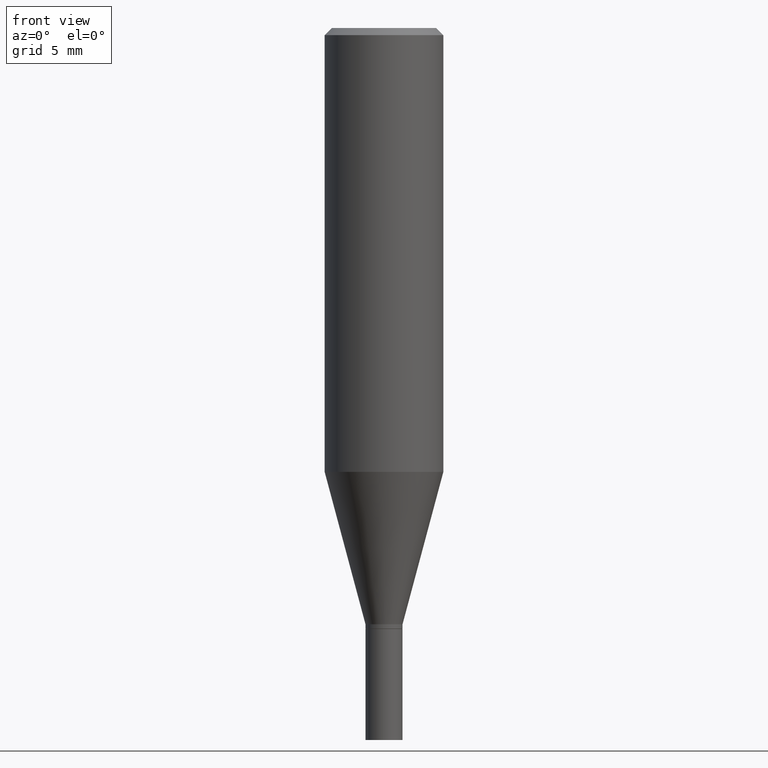
[diagram: clean part render]
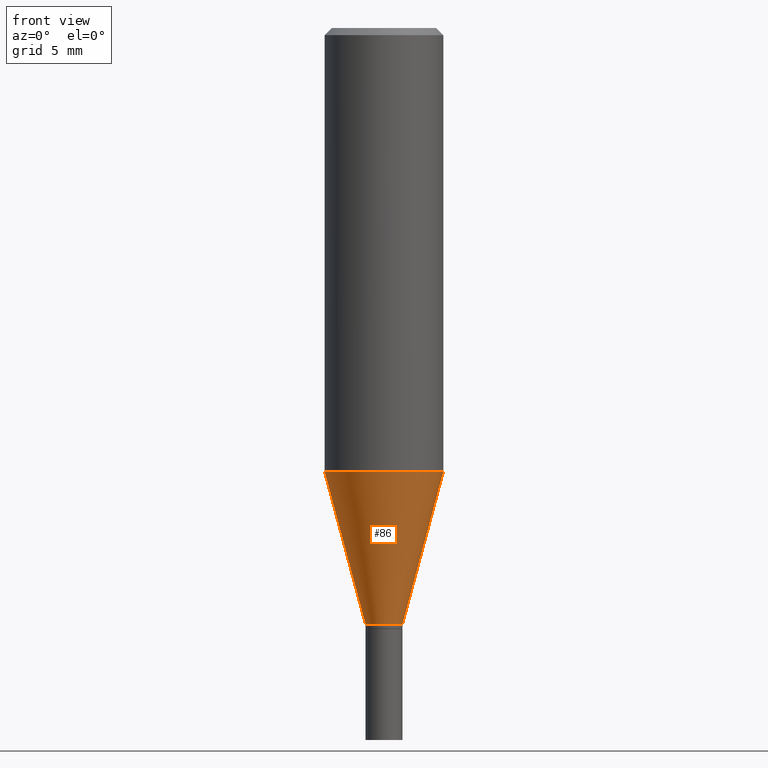
[diagram: same view with one face highlighted and labeled with its STEP entity id]
A machine part, front view. The second image highlights one B-rep face of the part: STEP entity #86.
In plain terms, the highlighted conical surface has half-angle 15 deg.
Its self-contained STEP definition (entity closure, byte-faithful):
#10 = VERTEX_POINT ( 'NONE', #16 ) ;
#16 = CARTESIAN_POINT ( 'NONE',  ( -0.03904999999999992505, -3.242497054963153757E-15, -1.256000000000000227 ) ) ;
#24 = LINE ( 'NONE', #135, #459 ) ;
#25 = VERTEX_POINT ( 'NONE', #409 ) ;
#43 = CIRCLE ( 'NONE', #370, 0.03904999999999992505 ) ;
#86 = ADVANCED_FACE ( 'NONE', ( #201 ), #354, .T. ) ;
#87 = EDGE_CURVE ( 'NONE', #25, #229, #24, .T. ) ;
#98 = DIRECTION ( 'NONE',  ( 0.2588190451025213501, 1.565188264969621968E-15, 0.9659258262890682012 ) ) ;
#126 = ORIENTED_EDGE ( 'NONE', *, *, #305, .T. ) ;
#129 = CARTESIAN_POINT ( 'NONE',  ( 3.071508820568532122E-29, -4.385300561586992092E-15, -1.256000000000000227 ) ) ;
#132 = EDGE_CURVE ( 'NONE', #362, #229, #312, .T. ) ;
#135 = CARTESIAN_POINT ( 'NONE',  ( 0.03904999999999992505, -4.657985254150639627E-15, -1.256000000000000227 ) ) ;
#143 = DIRECTION ( 'NONE',  ( -2.445468806185136597E-29, 3.491481338843145583E-15, 1.000000000000000000 ) ) ;
#168 = CARTESIAN_POINT ( 'NONE',  ( 0.1250000000000000278, -4.138209241064543323E-15, -0.9352302330894556315 ) ) ;
#201 = FACE_OUTER_BOUND ( 'NONE', #405, .T. ) ;
#205 = DIRECTION ( 'NONE',  ( -2.445468806185136597E-29, 3.491481338843145583E-15, 1.000000000000000000 ) ) ;
#206 = AXIS2_PLACEMENT_3D ( 'NONE', #129, #205, #347 ) ;
#211 = DIRECTION ( 'NONE',  ( 1.000000000000000000, -6.982962677686266711E-15, 0.000000000000000000 ) ) ;
#216 = CARTESIAN_POINT ( 'NONE',  ( -0.03904999999999992505, -4.107833623272672762E-15, -1.256000000000000227 ) ) ;
#218 = EDGE_CURVE ( 'NONE', #10, #362, #285, .T. ) ;
#229 = VERTEX_POINT ( 'NONE', #168 ) ;
#267 = VECTOR ( 'NONE', #393, 39.37007874015747433 ) ;
#268 = CARTESIAN_POINT ( 'NONE',  ( -0.1250000000000000278, -2.377160486653634357E-15, -0.9352302330894556315 ) ) ;
#269 = ORIENTED_EDGE ( 'NONE', *, *, #132, .F. ) ;
#285 = LINE ( 'NONE', #216, #267 ) ;
#287 = DIRECTION ( 'NONE',  ( 1.000000000000000000, -6.982962677686254878E-15, 0.000000000000000000 ) ) ;
#305 = EDGE_CURVE ( 'NONE', #10, #25, #43, .T. ) ;
#312 = CIRCLE ( 'NONE', #348, 0.1250000000000000000 ) ;
#321 = ORIENTED_EDGE ( 'NONE', *, *, #218, .F. ) ;
#347 = DIRECTION ( 'NONE',  ( 1.000000000000000000, -6.982962677686254878E-15, 0.000000000000000000 ) ) ;
#348 = AXIS2_PLACEMENT_3D ( 'NONE', #389, #352, #211 ) ;
#352 = DIRECTION ( 'NONE',  ( -2.445468806185136597E-29, 3.491481338843145583E-15, 1.000000000000000000 ) ) ;
#354 = CONICAL_SURFACE ( 'NONE', #206, 0.03904999999999992505, 0.2617993877991500740 ) ;
#362 = VERTEX_POINT ( 'NONE', #268 ) ;
#370 = AXIS2_PLACEMENT_3D ( 'NONE', #465, #143, #287 ) ;
#389 = CARTESIAN_POINT ( 'NONE',  ( 2.287076361621518071E-29, -3.265338906353759984E-15, -0.9352302330894556315 ) ) ;
#393 = DIRECTION ( 'NONE',  ( -0.2588190451025213501, 5.211531920934551042E-15, 0.9659258262890682012 ) ) ;
#394 = ORIENTED_EDGE ( 'NONE', *, *, #87, .T. ) ;
#405 = EDGE_LOOP ( 'NONE', ( #321, #126, #394, #269 ) ) ;
#409 = CARTESIAN_POINT ( 'NONE',  ( 0.03904999999999992505, -4.657985254150639627E-15, -1.256000000000000227 ) ) ;
#459 = VECTOR ( 'NONE', #98, 39.37007874015747433 ) ;
#465 = CARTESIAN_POINT ( 'NONE',  ( 3.071508820568532122E-29, -4.385300561586992092E-15, -1.256000000000000227 ) ) ;